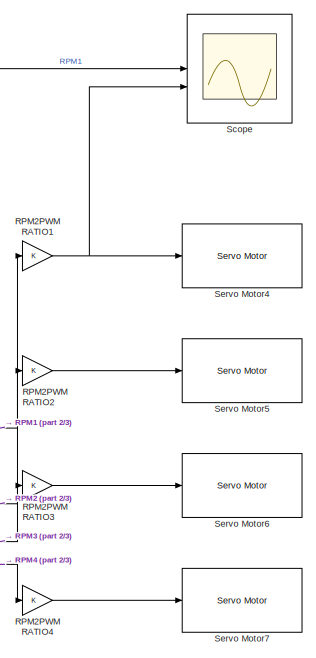
[diagram: root canvas - part 1/3, top right region]
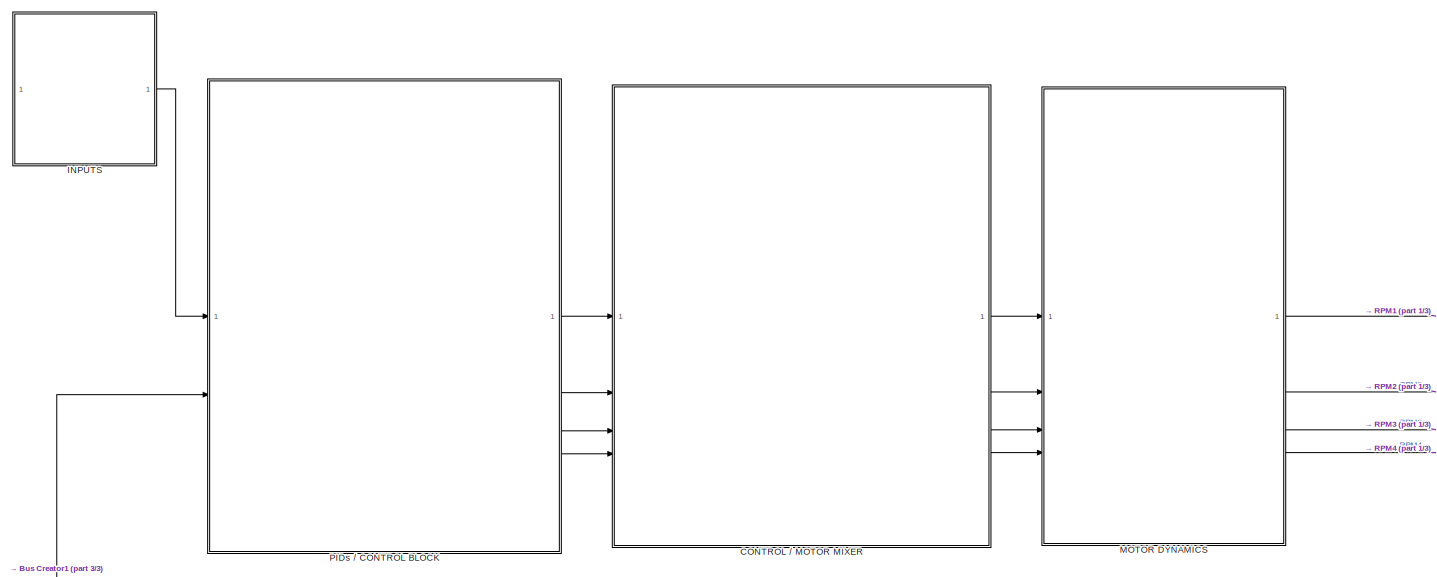
[diagram: root canvas - part 2/3, full width, top band]
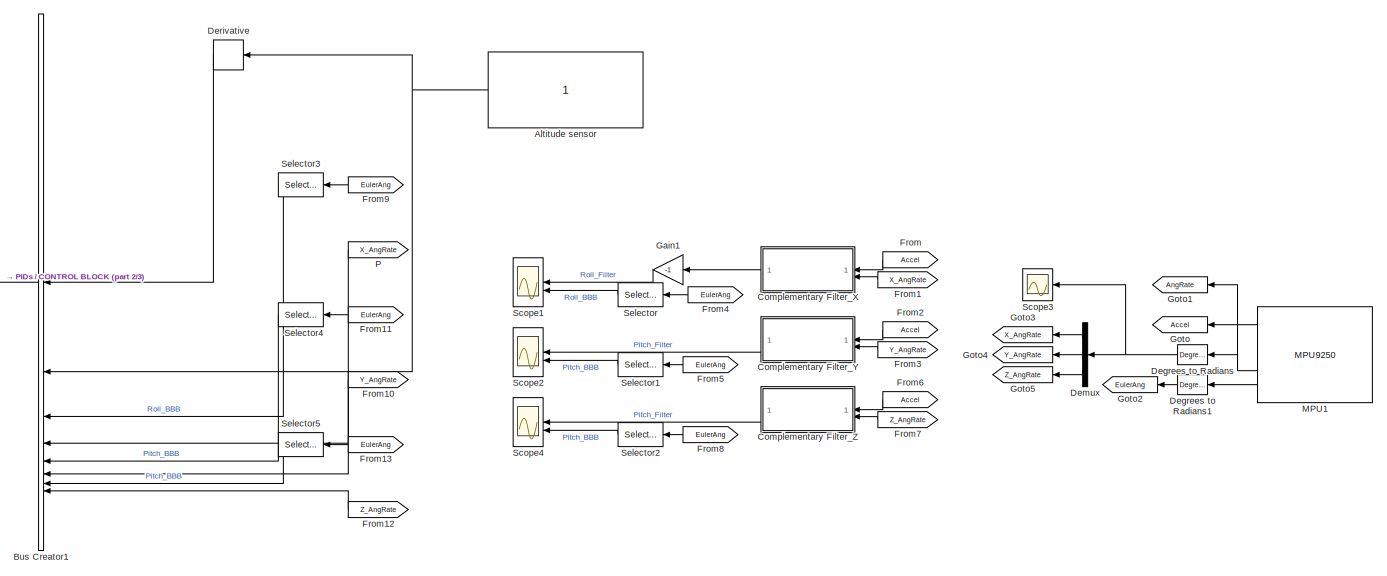
[diagram: root canvas - part 3/3, full width, bottom band]
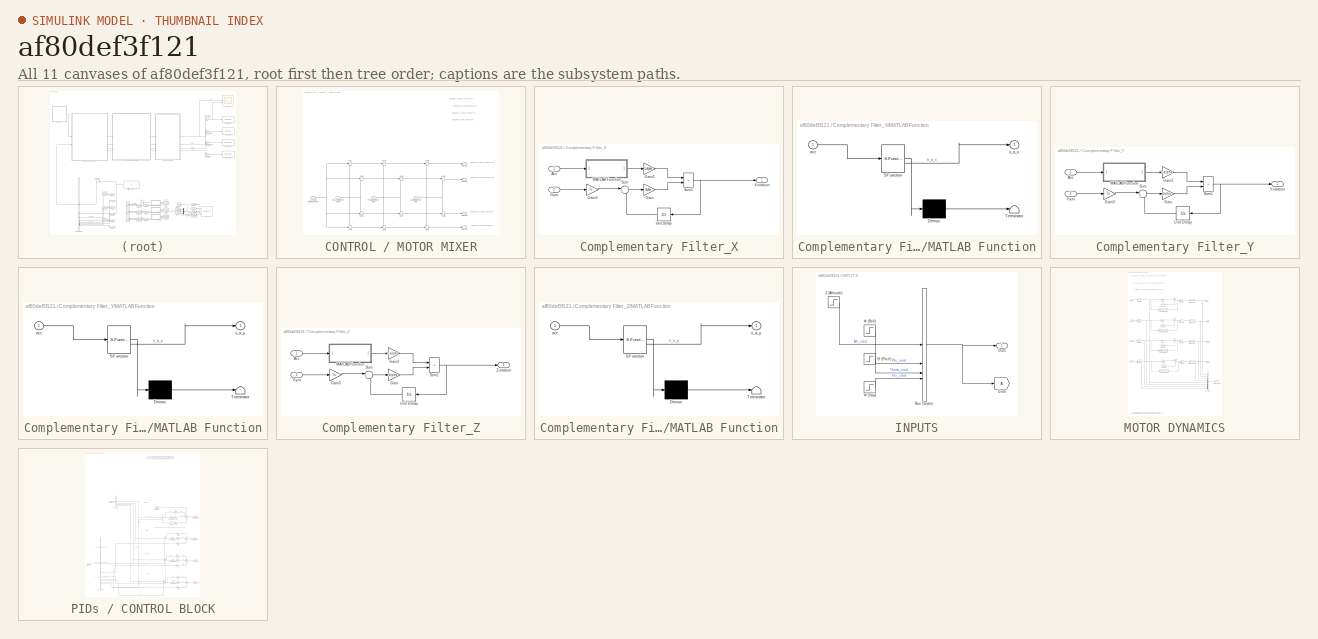
[diagram: thumbnail index - all 11 canvases of the model, root first then tree order]
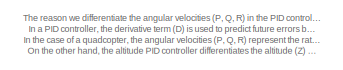
[diagram: PIDs / CONTROL BLOCK - part 1/4, top center region]
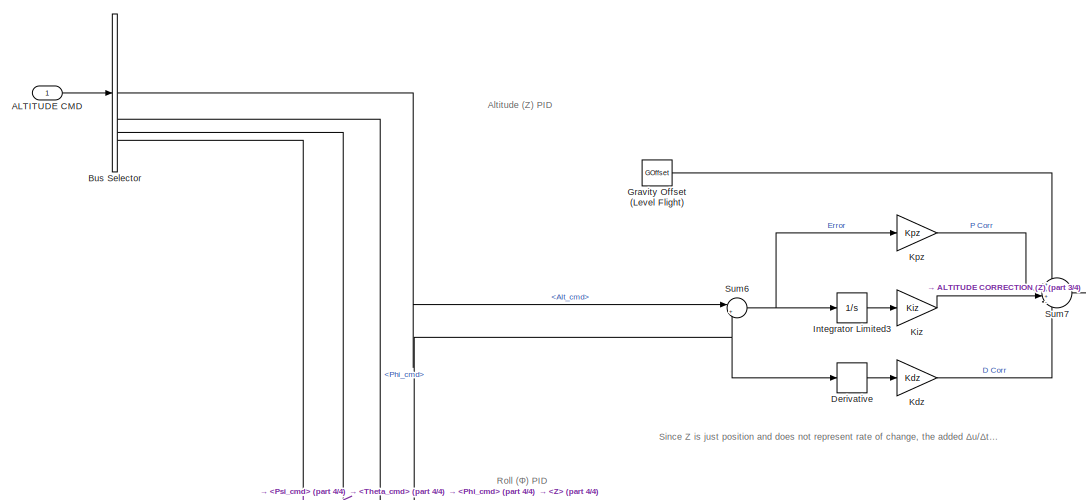
[diagram: PIDs / CONTROL BLOCK - part 2/4, central region]
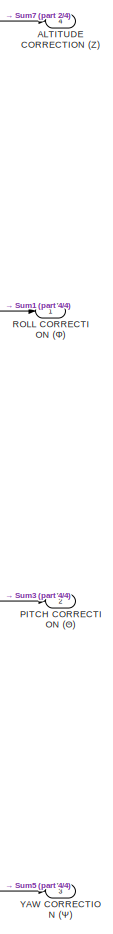
[diagram: PIDs / CONTROL BLOCK - part 3/4, bottom right region]
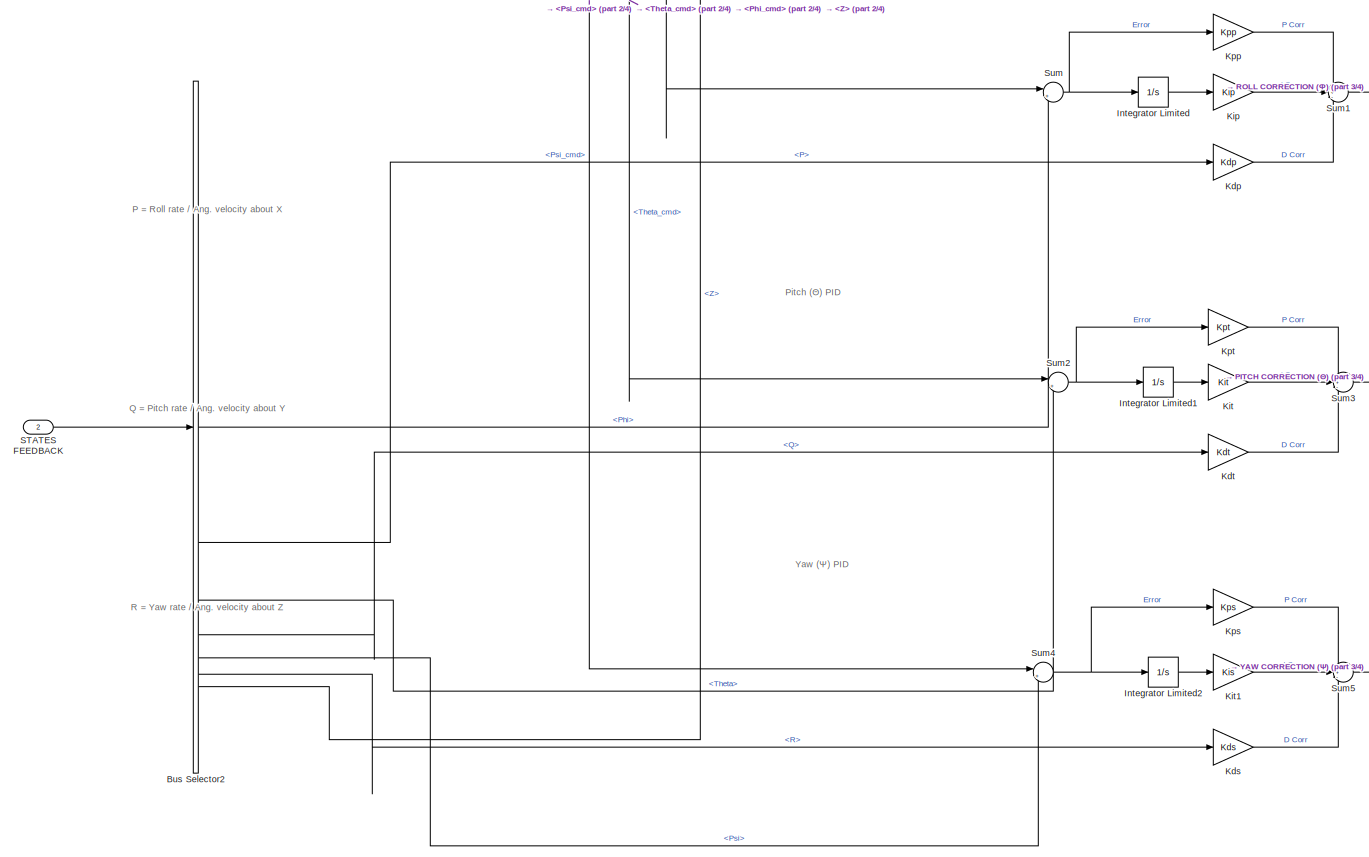
[diagram: PIDs / CONTROL BLOCK - part 4/4, full width, bottom band]
MODEL slx_af80def3f121
KIND model
CONFIG AbsTol = auto
CONFIG EnableMultiTasking = off
CONFIG FixedStep = auto
CONFIG MaxStep = auto
CONFIG MinStep = auto
CONFIG RelTol = 1e-3
CONFIG SampleTimeConstraint = Unconstrained
CONFIG SolverName = VariableStepAuto
CONFIG StartTime = 0.0
CONFIG StopTime = 10.0
BLOCK [Constant] Altitude sensor
BLOCK [BusCreator] Bus Creator1
  DisplayOption = bar
  InheritFromInputs = on
  Inputs = 8
BLOCK [SubSystem] CONTROL // MOTOR MIXER
BLOCK [Inport] CONTROL // MOTOR MIXER/ALTITUDE CORRECTION (Z)
  Port = 4
BLOCK [Outport] CONTROL // MOTOR MIXER/MOTOR1
BLOCK [Outport] CONTROL // MOTOR MIXER/MOTOR2
  Port = 2
BLOCK [Outport] CONTROL // MOTOR MIXER/MOTOR3
  Port = 3
BLOCK [Outport] CONTROL // MOTOR MIXER/MOTOR4
  Port = 4
BLOCK [Inport] CONTROL // MOTOR MIXER/PITCH CORRECTION (θ)
  Port = 2
BLOCK [Inport] CONTROL // MOTOR MIXER/ROLL CORRECTION (Φ)
BLOCK [Sum] CONTROL // MOTOR MIXER/Sum
  Inputs = |+-
BLOCK [Sum] CONTROL // MOTOR MIXER/Sum1
  Inputs = |++
BLOCK [Sum] CONTROL // MOTOR MIXER/Sum10
  Inputs = ++|
BLOCK [Sum] CONTROL // MOTOR MIXER/Sum11
  Inputs = |++
BLOCK [Sum] CONTROL // MOTOR MIXER/Sum2
  Inputs = -+|
BLOCK [Sum] CONTROL // MOTOR MIXER/Sum3
  Inputs = -+|
BLOCK [Sum] CONTROL // MOTOR MIXER/Sum4
  Inputs = |++
BLOCK [Sum] CONTROL // MOTOR MIXER/Sum5
  Inputs = -+|
BLOCK [Sum] CONTROL // MOTOR MIXER/Sum6
  Inputs = |+-
BLOCK [Sum] CONTROL // MOTOR MIXER/Sum7
  Inputs = ++|
BLOCK [Sum] CONTROL // MOTOR MIXER/Sum8
  Inputs = |++
BLOCK [Sum] CONTROL // MOTOR MIXER/Sum9
  Inputs = -+|
BLOCK [Inport] CONTROL // MOTOR MIXER/YAW CORRECTION (ψ)
  Port = 3
BLOCK [SubSystem] Complementary Filter_X
BLOCK [Inport] Complementary Filter_X/Acc
BLOCK [Gain] Complementary Filter_X/Gain
  Gain = alpha
BLOCK [Gain] Complementary Filter_X/Gain2
  Gain = 1-alpha
BLOCK [Gain] Complementary Filter_X/Gain3
  Gain = Ts
BLOCK [Inport] Complementary Filter_X/Gyro
  Port = 2
BLOCK [SubSystem] Complementary Filter_X/MATLAB Function
  ErrorFcn = Stateflow.Translate.translate
  PermitHierarchicalResolution = ExplicitOnly
  SFBlockType = MATLAB Function
  TreatAsAtomicUnit = on
BLOCK [Demux] Complementary Filter_X/MATLAB Function/ Demux 
  Outputs = 1
BLOCK [S-Function] Complementary Filter_X/MATLAB Function/ SFunction 
  EnableBusSupport = on
  FunctionName = sf_sfun
  PortCounts = [1 2]
  SFcnIsStateOwnerBlock = off
  SFunctionDeploymentMode = off
  Tag = Stateflow S-Function 2
BLOCK [Terminator] Complementary Filter_X/MATLAB Function/ Terminator 
BLOCK [Inport] Complementary Filter_X/MATLAB Function/acc
BLOCK [Outport] Complementary Filter_X/MATLAB Function/o_a_x
BLOCK [Sum] Complementary Filter_X/Sum
  Inputs = |++
BLOCK [Sum] Complementary Filter_X/Sum1
  IconShape = rectangular
BLOCK [UnitDelay] Complementary Filter_X/Unit Delay
  HasFrameUpgradeWarning = on
  NameLocation = top
  SampleTime = -1
BLOCK [Outport] Complementary Filter_X/X-rotation
BLOCK [SubSystem] Complementary Filter_Y
BLOCK [Inport] Complementary Filter_Y/Acc
BLOCK [Gain] Complementary Filter_Y/Gain
  Gain = alpha
BLOCK [Gain] Complementary Filter_Y/Gain2
  Gain = 1-alpha
BLOCK [Gain] Complementary Filter_Y/Gain3
  Gain = Ts
BLOCK [Inport] Complementary Filter_Y/Gyro
  Port = 2
BLOCK [SubSystem] Complementary Filter_Y/MATLAB Function
  ErrorFcn = Stateflow.Translate.translate
  PermitHierarchicalResolution = ExplicitOnly
  SFBlockType = MATLAB Function
  TreatAsAtomicUnit = on
BLOCK [Demux] Complementary Filter_Y/MATLAB Function/ Demux 
  Outputs = 1
BLOCK [S-Function] Complementary Filter_Y/MATLAB Function/ SFunction 
  EnableBusSupport = on
  FunctionName = sf_sfun
  PortCounts = [1 2]
  SFcnIsStateOwnerBlock = off
  SFunctionDeploymentMode = off
  Tag = Stateflow S-Function 3
BLOCK [Terminator] Complementary Filter_Y/MATLAB Function/ Terminator 
BLOCK [Inport] Complementary Filter_Y/MATLAB Function/acc
BLOCK [Outport] Complementary Filter_Y/MATLAB Function/o_a_y
BLOCK [Sum] Complementary Filter_Y/Sum
  Inputs = |++
BLOCK [Sum] Complementary Filter_Y/Sum1
  IconShape = rectangular
BLOCK [UnitDelay] Complementary Filter_Y/Unit Delay
  HasFrameUpgradeWarning = on
  NameLocation = top
  SampleTime = -1
BLOCK [Outport] Complementary Filter_Y/Y-rotation
BLOCK [SubSystem] Complementary Filter_Z
BLOCK [Inport] Complementary Filter_Z/Acc
BLOCK [Gain] Complementary Filter_Z/Gain
  Gain = alpha
BLOCK [Gain] Complementary Filter_Z/Gain2
  Gain = 1-alpha
BLOCK [Gain] Complementary Filter_Z/Gain3
  Gain = Ts
BLOCK [Inport] Complementary Filter_Z/Gyro
  Port = 2
BLOCK [SubSystem] Complementary Filter_Z/MATLAB Function
  ErrorFcn = Stateflow.Translate.translate
  PermitHierarchicalResolution = ExplicitOnly
  SFBlockType = MATLAB Function
  TreatAsAtomicUnit = on
BLOCK [Demux] Complementary Filter_Z/MATLAB Function/ Demux 
  Outputs = 1
BLOCK [S-Function] Complementary Filter_Z/MATLAB Function/ SFunction 
  EnableBusSupport = on
  FunctionName = sf_sfun
  PortCounts = [1 2]
  SFcnIsStateOwnerBlock = off
  SFunctionDeploymentMode = off
  Tag = Stateflow S-Function 1
BLOCK [Terminator] Complementary Filter_Z/MATLAB Function/ Terminator 
BLOCK [Inport] Complementary Filter_Z/MATLAB Function/acc
BLOCK [Outport] Complementary Filter_Z/MATLAB Function/o_a_y
BLOCK [Sum] Complementary Filter_Z/Sum
  Inputs = |++
BLOCK [Sum] Complementary Filter_Z/Sum1
  IconShape = rectangular
BLOCK [UnitDelay] Complementary Filter_Z/Unit Delay
  HasFrameUpgradeWarning = on
  NameLocation = top
  SampleTime = -1
BLOCK [Outport] Complementary Filter_Z/Z-rotation
BLOCK [Reference] Degrees to Radians  REF=simulink_extras/Transformations/Degrees to
Radians
  SourceBlock = simulink_extras/Transformations/Degrees to\nRadians
  SourceType = DegreesToRadians
BLOCK [Reference] Degrees to Radians1  REF=simulink_extras/Transformations/Degrees to
Radians
  SourceBlock = simulink_extras/Transformations/Degrees to\nRadians
  SourceType = DegreesToRadians
BLOCK [Demux] Demux
  Outputs = 3
BLOCK [Derivative] Derivative
BLOCK [From] From
  GotoTag = Accel
  TagVisibility = global
BLOCK [From] From1
  GotoTag = X_AngRate
  TagVisibility = global
BLOCK [From] From10
  GotoTag = Y_AngRate
  TagVisibility = global
BLOCK [From] From11
  GotoTag = EulerAng
  TagVisibility = global
BLOCK [From] From12
  GotoTag = Z_AngRate
  TagVisibility = global
BLOCK [From] From13
  GotoTag = EulerAng
  TagVisibility = global
BLOCK [From] From2
  GotoTag = Accel
  TagVisibility = global
BLOCK [From] From3
  GotoTag = Y_AngRate
  TagVisibility = global
BLOCK [From] From4
  GotoTag = EulerAng
  TagVisibility = global
BLOCK [From] From5
  GotoTag = EulerAng
  TagVisibility = global
BLOCK [From] From6
  GotoTag = Accel
  TagVisibility = global
BLOCK [From] From7
  GotoTag = Z_AngRate
  TagVisibility = global
BLOCK [From] From8
  GotoTag = EulerAng
  TagVisibility = global
BLOCK [From] From9
  GotoTag = EulerAng
  TagVisibility = global
BLOCK [Gain] Gain1
  Gain = -1
BLOCK [Goto] Goto
  GotoTag = Accel
  TagVisibility = global
BLOCK [Goto] Goto1
  GotoTag = AngRate
  TagVisibility = global
BLOCK [Goto] Goto2
  GotoTag = EulerAng
  TagVisibility = global
BLOCK [Goto] Goto3
  GotoTag = X_AngRate
  TagVisibility = global
BLOCK [Goto] Goto4
  GotoTag = Y_AngRate
  TagVisibility = global
BLOCK [Goto] Goto5
  GotoTag = Z_AngRate
  TagVisibility = global
BLOCK [SubSystem] INPUTS
BLOCK [BusCreator] INPUTS/Bus Creator
  DisplayOption = bar
  InheritFromInputs = on
  Inputs = 4
BLOCK [Goto] INPUTS/Goto
  TagVisibility = global
BLOCK [Outport] INPUTS/Out1
BLOCK [Step] INPUTS/Z (Altitude)
  SampleTime = 0
BLOCK [Step] INPUTS/Θ (Pitch)
  SampleTime = 0
BLOCK [Step] INPUTS/Φ (Roll)
  SampleTime = 0
BLOCK [Step] INPUTS/Ψ (Yaw)
  SampleTime = 0
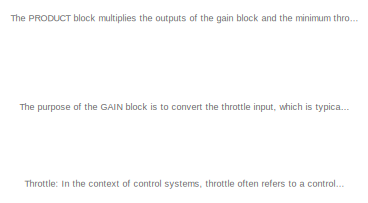
[diagram: MOTOR DYNAMICS - part 1/4, top left region]
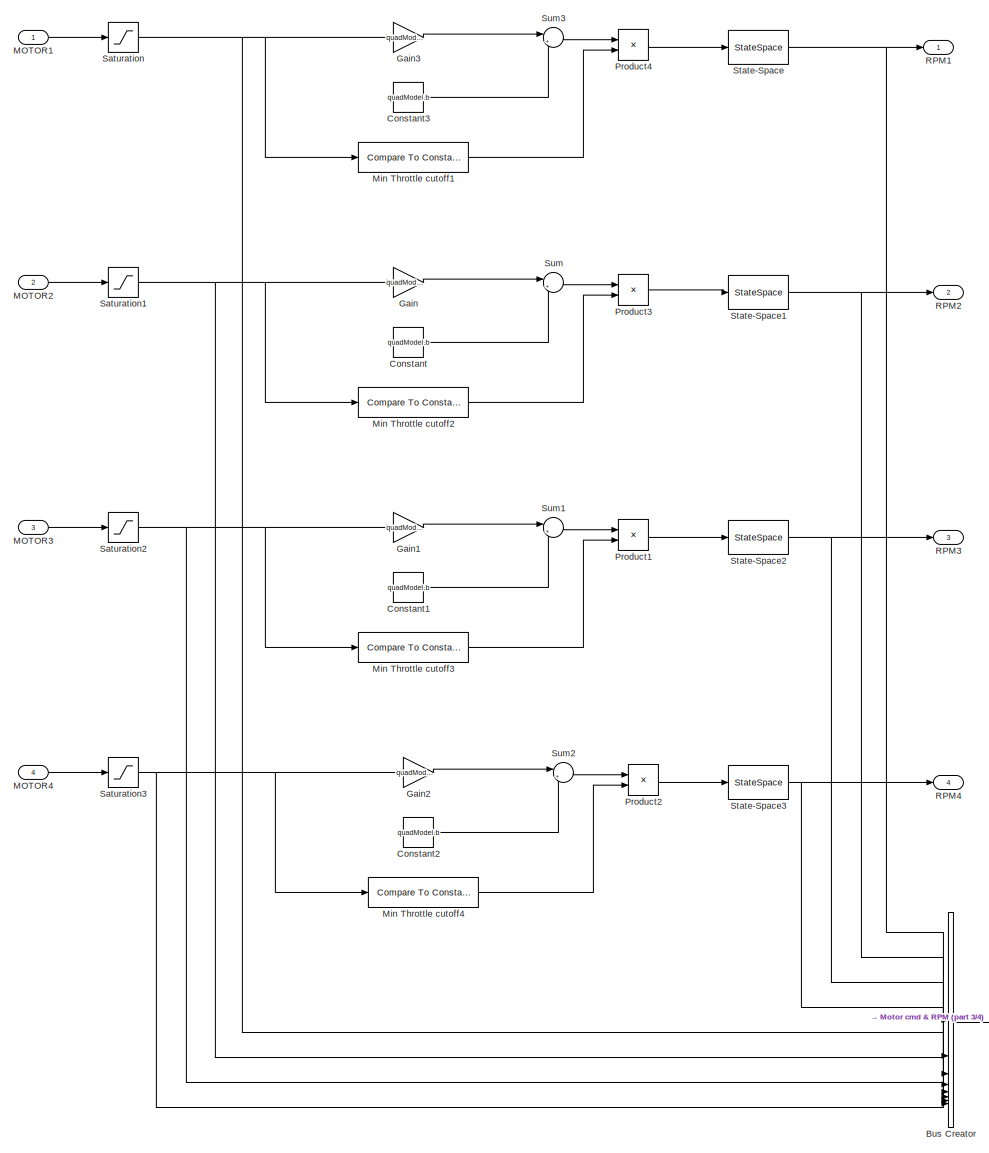
[diagram: MOTOR DYNAMICS - part 2/4, full width, middle band]
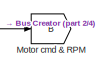
[diagram: MOTOR DYNAMICS - part 3/4, bottom right region]
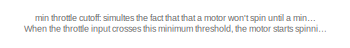
[diagram: MOTOR DYNAMICS - part 4/4, bottom left region]
BLOCK [SubSystem] MOTOR DYNAMICS
BLOCK [BusCreator] MOTOR DYNAMICS/Bus Creator
  DisplayOption = bar
  InheritFromInputs = on
  Inputs = 8
BLOCK [Constant] MOTOR DYNAMICS/Constant
  Value = quadModel.b
BLOCK [Constant] MOTOR DYNAMICS/Constant1
  Value = quadModel.b
BLOCK [Constant] MOTOR DYNAMICS/Constant2
  Value = quadModel.b
BLOCK [Constant] MOTOR DYNAMICS/Constant3
  Value = quadModel.b
BLOCK [Gain] MOTOR DYNAMICS/Gain
  Gain = quadModel.cr
BLOCK [Gain] MOTOR DYNAMICS/Gain1
  Gain = quadModel.cr
BLOCK [Gain] MOTOR DYNAMICS/Gain2
  Gain = quadModel.cr
BLOCK [Gain] MOTOR DYNAMICS/Gain3
  Gain = quadModel.cr
BLOCK [Inport] MOTOR DYNAMICS/MOTOR1
BLOCK [Inport] MOTOR DYNAMICS/MOTOR2
  Port = 2
BLOCK [Inport] MOTOR DYNAMICS/MOTOR3
  Port = 3
BLOCK [Inport] MOTOR DYNAMICS/MOTOR4
  Port = 4
BLOCK [Reference] MOTOR DYNAMICS/Min Throttle cutoff1  REF=simulink/Logic and Bit
Operations/Compare
To Constant
  SourceBlock = simulink/Logic and Bit\nOperations/Compare\nTo Constant
  SourceType = Compare To Constant
BLOCK [Reference] MOTOR DYNAMICS/Min Throttle cutoff2  REF=simulink/Logic and Bit
Operations/Compare
To Constant
  SourceBlock = simulink/Logic and Bit\nOperations/Compare\nTo Constant
  SourceType = Compare To Constant
BLOCK [Reference] MOTOR DYNAMICS/Min Throttle cutoff3  REF=simulink/Logic and Bit
Operations/Compare
To Constant
  SourceBlock = simulink/Logic and Bit\nOperations/Compare\nTo Constant
  SourceType = Compare To Constant
BLOCK [Reference] MOTOR DYNAMICS/Min Throttle cutoff4  REF=simulink/Logic and Bit
Operations/Compare
To Constant
  SourceBlock = simulink/Logic and Bit\nOperations/Compare\nTo Constant
  SourceType = Compare To Constant
BLOCK [Goto] MOTOR DYNAMICS/Motor cmd & RPM
  GotoTag = B
  TagVisibility = global
BLOCK [Product] MOTOR DYNAMICS/Product1
BLOCK [Product] MOTOR DYNAMICS/Product2
BLOCK [Product] MOTOR DYNAMICS/Product3
BLOCK [Product] MOTOR DYNAMICS/Product4
BLOCK [Outport] MOTOR DYNAMICS/RPM1
BLOCK [Outport] MOTOR DYNAMICS/RPM2
  Port = 2
BLOCK [Outport] MOTOR DYNAMICS/RPM3
  Port = 3
BLOCK [Outport] MOTOR DYNAMICS/RPM4
  Port = 4
BLOCK [Saturate] MOTOR DYNAMICS/Saturation
BLOCK [Saturate] MOTOR DYNAMICS/Saturation1
BLOCK [Saturate] MOTOR DYNAMICS/Saturation2
BLOCK [Saturate] MOTOR DYNAMICS/Saturation3
BLOCK [StateSpace] MOTOR DYNAMICS/State-Space
  InitialCondition = 0
BLOCK [StateSpace] MOTOR DYNAMICS/State-Space1
  InitialCondition = 0
BLOCK [StateSpace] MOTOR DYNAMICS/State-Space2
  InitialCondition = 0
BLOCK [StateSpace] MOTOR DYNAMICS/State-Space3
  InitialCondition = 0
BLOCK [Sum] MOTOR DYNAMICS/Sum
  Inputs = |++
  NameLocation = top
BLOCK [Sum] MOTOR DYNAMICS/Sum1
  Inputs = |++
  NameLocation = top
BLOCK [Sum] MOTOR DYNAMICS/Sum2
  Inputs = |++
  NameLocation = top
BLOCK [Sum] MOTOR DYNAMICS/Sum3
  Inputs = |++
  NameLocation = top
BLOCK [Reference] MPU1  REF=bbblueSensorLib/MPU9250
  SourceBlock = bbblueSensorLib/MPU9250
  SourceType = beagleboneblue.bbblueMPU9250
BLOCK [From] P
  GotoTag = X_AngRate
  TagVisibility = global
BLOCK [SubSystem] PIDs // CONTROL BLOCK
BLOCK [Inport] PIDs // CONTROL BLOCK/ALTITUDE CMD
BLOCK [Outport] PIDs // CONTROL BLOCK/ALTITUDE CORRECTION (Ζ)
  Port = 4
BLOCK [BusSelector] PIDs // CONTROL BLOCK/Bus Selector
  OutputSignals = Alt_cmd,Phi_cmd,Theta_cmd,Psi_cmd
BLOCK [BusSelector] PIDs // CONTROL BLOCK/Bus Selector2
  OutputSignals = Phi,P,Theta,Q,Psi,R,Z
BLOCK [Derivative] PIDs // CONTROL BLOCK/Derivative
BLOCK [Constant] PIDs // CONTROL BLOCK/Gravity Offset (Level Flight)
  Value = GOffset
BLOCK [Integrator] PIDs // CONTROL BLOCK/Integrator Limited
  LimitOutput = on
  LowerSaturationLimit = LSat
  UpperSaturationLimit = USat
BLOCK [Integrator] PIDs // CONTROL BLOCK/Integrator Limited1
  LimitOutput = on
  LowerSaturationLimit = LSat
  UpperSaturationLimit = USat
BLOCK [Integrator] PIDs // CONTROL BLOCK/Integrator Limited2
  LimitOutput = on
  LowerSaturationLimit = LSat
  UpperSaturationLimit = USat
BLOCK [Integrator] PIDs // CONTROL BLOCK/Integrator Limited3
  LimitOutput = on
  LowerSaturationLimit = LSat
  UpperSaturationLimit = USat
BLOCK [Gain] PIDs // CONTROL BLOCK/Kdp
  Gain = Kdp
BLOCK [Gain] PIDs // CONTROL BLOCK/Kds
  Gain = Kds
BLOCK [Gain] PIDs // CONTROL BLOCK/Kdt
  Gain = Kdt
BLOCK [Gain] PIDs // CONTROL BLOCK/Kdz
  Gain = Kdz
BLOCK [Gain] PIDs // CONTROL BLOCK/Kip
  Gain = Kip
BLOCK [Gain] PIDs // CONTROL BLOCK/Kit
  Gain = Kit
BLOCK [Gain] PIDs // CONTROL BLOCK/Kit1
  Gain = Kis
BLOCK [Gain] PIDs // CONTROL BLOCK/Kiz
  Gain = Kiz
BLOCK [Gain] PIDs // CONTROL BLOCK/Kpp
  Gain = Kpp
BLOCK [Gain] PIDs // CONTROL BLOCK/Kps
  Gain = Kps
BLOCK [Gain] PIDs // CONTROL BLOCK/Kpt
  Gain = Kpt
BLOCK [Gain] PIDs // CONTROL BLOCK/Kpz
  Gain = Kpz
BLOCK [Outport] PIDs // CONTROL BLOCK/PITCH CORRECTION (Θ)
  Port = 2
BLOCK [Outport] PIDs // CONTROL BLOCK/ROLL CORRECTION (Φ)
BLOCK [Inport] PIDs // CONTROL BLOCK/STATES FEEDBACK
  NameLocation = top
  Port = 2
BLOCK [Sum] PIDs // CONTROL BLOCK/Sum
  Inputs = |+-
BLOCK [Sum] PIDs // CONTROL BLOCK/Sum1
  Inputs = ++-
BLOCK [Sum] PIDs // CONTROL BLOCK/Sum2
  Inputs = |+-
BLOCK [Sum] PIDs // CONTROL BLOCK/Sum3
  Inputs = ++-
BLOCK [Sum] PIDs // CONTROL BLOCK/Sum4
  Inputs = |+-
BLOCK [Sum] PIDs // CONTROL BLOCK/Sum5
  Inputs = ++-
BLOCK [Sum] PIDs // CONTROL BLOCK/Sum6
  Inputs = |+-
BLOCK [Sum] PIDs // CONTROL BLOCK/Sum7
  Inputs = +++-
BLOCK [Outport] PIDs // CONTROL BLOCK/YAW CORRECTION (Ψ)
  Port = 3
BLOCK [Gain] RPM2PWM RATIO1
BLOCK [Gain] RPM2PWM RATIO2
BLOCK [Gain] RPM2PWM RATIO3
BLOCK [Gain] RPM2PWM RATIO4
BLOCK [Scope] Scope
  Floating = off
  NumInputPorts = 2
  ScopeSpecificationString = Simulink.scopes.TimeScopeBlockCfg('CurrentConfiguration', extmgr.ConfigurationSet(extmgr.Configuration('Core','General UI',true),extmgr.Configuration('Core','Source UI',true),extmgr.Configuration('Sources','WiredSimulink',true),extmgr.Configuration('Visuals','Time Domain',true,'SerializedDisplays',{struct('MinYLimReal','-10','MaxYLimReal','10','YLabelReal','','MinYLimMag','0','MaxYLimMag','10','Le...<+1568ch>
BLOCK [Scope] Scope1
  Floating = off
  NumInputPorts = 2
  ScopeSpecificationString = Simulink.scopes.TimeScopeBlockCfg('CurrentConfiguration', extmgr.ConfigurationSet(extmgr.Configuration('Core','General UI',true),extmgr.Configuration('Core','Source UI',true),extmgr.Configuration('Sources','WiredSimulink',true,'DataLoggingVariableName','ScopeData2'),extmgr.Configuration('Visuals','Time Domain',true,'SerializedDisplays',{struct('MinYLimReal','-0.42274','MaxYLimReal','0.28983','YLab...<+1550ch>
BLOCK [Scope] Scope2
  Floating = off
  NumInputPorts = 2
  ScopeSpecificationString = Simulink.scopes.TimeScopeBlockCfg('CurrentConfiguration', extmgr.ConfigurationSet(extmgr.Configuration('Core','General UI',true),extmgr.Configuration('Core','Source UI',true),extmgr.Configuration('Sources','WiredSimulink',true,'DataLoggingVariableName','ScopeData3'),extmgr.Configuration('Visuals','Time Domain',true,'SerializedDisplays',{struct('MinYLimReal','-1.35091','MaxYLimReal','1.63429','YLab...<+1552ch>
BLOCK [Scope] Scope3
  Floating = off
  NumInputPorts = 1
  ScopeSpecificationString = Simulink.scopes.TimeScopeBlockCfg('CurrentConfiguration', extmgr.ConfigurationSet(extmgr.Configuration('Core','General UI',true),extmgr.Configuration('Core','Source UI',true),extmgr.Configuration('Sources','WiredSimulink',true,'DataLoggingVariableName','ScopeData1'),extmgr.Configuration('Visuals','Time Domain',true),extmgr.Configuration('Tools','Plot Navigation',true),extmgr.Configuration('Tools',...<+40ch>
BLOCK [Scope] Scope4
  Floating = off
  NumInputPorts = 2
  ScopeSpecificationString = Simulink.scopes.TimeScopeBlockCfg('CurrentConfiguration', extmgr.ConfigurationSet(extmgr.Configuration('Core','General UI',true),extmgr.Configuration('Core','Source UI',true),extmgr.Configuration('Sources','WiredSimulink',true,'DataLoggingVariableName','ScopeData4'),extmgr.Configuration('Visuals','Time Domain',true,'SerializedDisplays',{struct('MinYLimReal','-1.35091','MaxYLimReal','1.63429','YLab...<+1552ch>
BLOCK [Selector] Selector
  IndexOptions = Index vector (dialog)
  Indices = [2]
  InputPortWidth = 3
  OutputSizes = 1
BLOCK [Selector] Selector1
  IndexOptions = Index vector (dialog)
  Indices = [1]
  InputPortWidth = 3
  OutputSizes = 1
BLOCK [Selector] Selector2
  IndexOptions = Index vector (dialog)
  Indices = [3]
  InputPortWidth = 3
  OutputSizes = 1
BLOCK [Selector] Selector3
  IndexOptions = Index vector (dialog)
  Indices = [2]
  InputPortWidth = 3
  OutputSizes = 1
BLOCK [Selector] Selector4
  IndexOptions = Index vector (dialog)
  Indices = [1]
  InputPortWidth = 3
  OutputSizes = 1
BLOCK [Selector] Selector5
  IndexOptions = Index vector (dialog)
  Indices = [3]
  InputPortWidth = 3
  OutputSizes = 1
BLOCK [Reference] Servo Motor4  REF=bbblueActuatorLib/Servo Motor
  SourceBlock = bbblueActuatorLib/Servo Motor
  SourceType = beagleboneblue.bbblueServo
BLOCK [Reference] Servo Motor5  REF=bbblueActuatorLib/Servo Motor
  SourceBlock = bbblueActuatorLib/Servo Motor
  SourceType = beagleboneblue.bbblueServo
BLOCK [Reference] Servo Motor6  REF=bbblueActuatorLib/Servo Motor
  SourceBlock = bbblueActuatorLib/Servo Motor
  SourceType = beagleboneblue.bbblueServo
BLOCK [Reference] Servo Motor7  REF=bbblueActuatorLib/Servo Motor
  SourceBlock = bbblueActuatorLib/Servo Motor
  SourceType = beagleboneblue.bbblueServo
ANNOTATION CONTROL // MOTOR MIXER: MOTOR1 = ALT. - ROLL + PITCH + YAW
ANNOTATION CONTROL // MOTOR MIXER: MOTOR2 = ALT. + ROLL - PITCH + YAW
ANNOTATION CONTROL // MOTOR MIXER: MOTOR3 = ALT. + ROLL + PITCH - YAW
ANNOTATION CONTROL // MOTOR MIXER: MOTOR4 = ALT. - ROLL - PITCH - YAW
ANNOTATION MOTOR DYNAMICS: The PRODUCT block multiplies the outputs of the gain block and the minimum throttle cutoff block. If the throttle input is greater than or equal to the throttle cutoff (minThr), the output equals the linearly scaled RPM for the given throttle input. Otherwise, the output is zero
ANNOTATION MOTOR DYNAMICS: Throttle : In the context of control systems, throttle often refers to a control input that determines the amount of power or thrust produced by the engine
ANNOTATION MOTOR DYNAMICS: min throttle cutoff: simultes the fact that that a motor won't spin until a minimum throttle point is reached. When the throttle input crosses this minimum threshold, the motor starts spinning, causing a sudden jump (jump discontinuity) in the RPM from zero to some positive value. This is an important aspect of accurately modeling the motor’s behavior. Ignoring this discontinuity could lead to unr...<+151ch>
ANNOTATION MOTOR DYNAMICS: The purpose of the GAIN block is to convert the throttle input, which is typically a dimensionless value ranging from 0 to 1, into an actual RPM value that the motors can understand
ANNOTATION PIDs // CONTROL BLOCK: The reason we differentiate the angular velocities (P, Q, R) in the PID controllers for roll, pitch, and yaw is related to the nature of these control systems. In a PID controller, the derivative term (D) is used to predict future errors based on the current rate of change of the error. This helps to apply corrections before the system can deviate significantly from the setpoint, and it adds a “da...<+854ch>
ANNOTATION PIDs // CONTROL BLOCK: Altitude (Z) PID
ANNOTATION PIDs // CONTROL BLOCK: P = Roll rate / Ang. velocity about X
ANNOTATION PIDs // CONTROL BLOCK: Pitch (Θ) PID
ANNOTATION PIDs // CONTROL BLOCK: Q = Pitch rate / Ang. velocity about Y
ANNOTATION PIDs // CONTROL BLOCK: R = Yaw rate / Ang. velocity about Z
ANNOTATION PIDs // CONTROL BLOCK: Roll (Φ) PID
ANNOTATION PIDs // CONTROL BLOCK: Since Z is just position and does not represent rate of change, the added Δu/Δt is to turn Z into linear velocity, i.e. linear rate of change
ANNOTATION PIDs // CONTROL BLOCK: Yaw (Ψ) PID
NET Altitude sensor:1 -> Bus Creator1:2, Derivative:1
LINE Bus Creator1:1 -> PIDs // CONTROL BLOCK:2
NET CONTROL // MOTOR MIXER/ALTITUDE CORRECTION (Z):1 -> CONTROL // MOTOR MIXER/Sum10:2, CONTROL // MOTOR MIXER/Sum3:2, CONTROL // MOTOR MIXER/Sum8:1, CONTROL // MOTOR MIXER/Sum:1
NET CONTROL // MOTOR MIXER/PITCH CORRECTION (θ):1 -> CONTROL // MOTOR MIXER/Sum1:2, CONTROL // MOTOR MIXER/Sum2:1, CONTROL // MOTOR MIXER/Sum6:2, CONTROL // MOTOR MIXER/Sum7:1
NET CONTROL // MOTOR MIXER/ROLL CORRECTION (Φ):1 -> CONTROL // MOTOR MIXER/Sum10:1, CONTROL // MOTOR MIXER/Sum3:1, CONTROL // MOTOR MIXER/Sum8:2, CONTROL // MOTOR MIXER/Sum:2
LINE CONTROL // MOTOR MIXER/Sum10:1 -> CONTROL // MOTOR MIXER/Sum7:2
LINE CONTROL // MOTOR MIXER/Sum11:1 -> CONTROL // MOTOR MIXER/MOTOR2:1
LINE CONTROL // MOTOR MIXER/Sum1:1 -> CONTROL // MOTOR MIXER/Sum4:1
LINE CONTROL // MOTOR MIXER/Sum2:1 -> CONTROL // MOTOR MIXER/Sum5:2
LINE CONTROL // MOTOR MIXER/Sum3:1 -> CONTROL // MOTOR MIXER/Sum2:2
LINE CONTROL // MOTOR MIXER/Sum4:1 -> CONTROL // MOTOR MIXER/MOTOR1:1
LINE CONTROL // MOTOR MIXER/Sum5:1 -> CONTROL // MOTOR MIXER/MOTOR4:1
LINE CONTROL // MOTOR MIXER/Sum6:1 -> CONTROL // MOTOR MIXER/Sum11:1
LINE CONTROL // MOTOR MIXER/Sum7:1 -> CONTROL // MOTOR MIXER/Sum9:2
LINE CONTROL // MOTOR MIXER/Sum8:1 -> CONTROL // MOTOR MIXER/Sum6:1
LINE CONTROL // MOTOR MIXER/Sum9:1 -> CONTROL // MOTOR MIXER/MOTOR3:1
LINE CONTROL // MOTOR MIXER/Sum:1 -> CONTROL // MOTOR MIXER/Sum1:1
NET CONTROL // MOTOR MIXER/YAW CORRECTION (ψ):1 -> CONTROL // MOTOR MIXER/Sum11:2, CONTROL // MOTOR MIXER/Sum4:2, CONTROL // MOTOR MIXER/Sum5:1, CONTROL // MOTOR MIXER/Sum9:1
LINE CONTROL // MOTOR MIXER:1 -> MOTOR DYNAMICS:1
LINE CONTROL // MOTOR MIXER:2 -> MOTOR DYNAMICS:2
LINE CONTROL // MOTOR MIXER:3 -> MOTOR DYNAMICS:3
LINE CONTROL // MOTOR MIXER:4 -> MOTOR DYNAMICS:4
LINE Complementary Filter_X/Acc:1 -> Complementary Filter_X/MATLAB Function:1
LINE Complementary Filter_X/Gain2:1 -> Complementary Filter_X/Sum1:1
LINE Complementary Filter_X/Gain3:1 -> Complementary Filter_X/Sum:1
LINE Complementary Filter_X/Gain:1 -> Complementary Filter_X/Sum1:2
LINE Complementary Filter_X/Gyro:1 -> Complementary Filter_X/Gain3:1
LINE Complementary Filter_X/MATLAB Function:1 -> Complementary Filter_X/Gain2:1
NET Complementary Filter_X/Sum1:1 -> Complementary Filter_X/Unit Delay:1, Complementary Filter_X/X-rotation:1
LINE Complementary Filter_X/Sum:1 -> Complementary Filter_X/Gain:1
LINE Complementary Filter_X/Unit Delay:1 -> Complementary Filter_X/Sum:2
LINE Complementary Filter_X:1 -> Gain1:1
LINE Complementary Filter_Y/Acc:1 -> Complementary Filter_Y/MATLAB Function:1
LINE Complementary Filter_Y/Gain2:1 -> Complementary Filter_Y/Sum1:1
LINE Complementary Filter_Y/Gain3:1 -> Complementary Filter_Y/Sum:1
LINE Complementary Filter_Y/Gain:1 -> Complementary Filter_Y/Sum1:2
LINE Complementary Filter_Y/Gyro:1 -> Complementary Filter_Y/Gain3:1
LINE Complementary Filter_Y/MATLAB Function:1 -> Complementary Filter_Y/Gain2:1
NET Complementary Filter_Y/Sum1:1 -> Complementary Filter_Y/Unit Delay:1, Complementary Filter_Y/Y-rotation:1
LINE Complementary Filter_Y/Sum:1 -> Complementary Filter_Y/Gain:1
LINE Complementary Filter_Y/Unit Delay:1 -> Complementary Filter_Y/Sum:2
LINE Complementary Filter_Y:1 -> Scope2:1
LINE Complementary Filter_Z/Acc:1 -> Complementary Filter_Z/MATLAB Function:1
LINE Complementary Filter_Z/Gain2:1 -> Complementary Filter_Z/Sum1:1
LINE Complementary Filter_Z/Gain3:1 -> Complementary Filter_Z/Sum:1
LINE Complementary Filter_Z/Gain:1 -> Complementary Filter_Z/Sum1:2
LINE Complementary Filter_Z/Gyro:1 -> Complementary Filter_Z/Gain3:1
LINE Complementary Filter_Z/MATLAB Function:1 -> Complementary Filter_Z/Gain2:1
NET Complementary Filter_Z/Sum1:1 -> Complementary Filter_Z/Unit Delay:1, Complementary Filter_Z/Z-rotation:1
LINE Complementary Filter_Z/Sum:1 -> Complementary Filter_Z/Gain:1
LINE Complementary Filter_Z/Unit Delay:1 -> Complementary Filter_Z/Sum:2
LINE Complementary Filter_Z:1 -> Scope4:1
LINE Degrees to Radians1:1 -> Goto2:1
NET Degrees to Radians:1 -> Demux:1, Scope3:1
LINE Demux:1 -> Goto3:1
LINE Demux:2 -> Goto4:1
LINE Demux:3 -> Goto5:1
LINE Derivative:1 -> Bus Creator1:1
LINE From10:1 -> Bus Creator1:6
LINE From11:1 -> Selector4:1
LINE From12:1 -> Bus Creator1:8
LINE From13:1 -> Selector5:1
LINE From1:1 -> Complementary Filter_X:2
LINE From2:1 -> Complementary Filter_Y:1
LINE From3:1 -> Complementary Filter_Y:2
LINE From4:1 -> Selector:1
LINE From5:1 -> Selector1:1
LINE From6:1 -> Complementary Filter_Z:1
LINE From7:1 -> Complementary Filter_Z:2
LINE From8:1 -> Selector2:1
LINE From9:1 -> Selector3:1
LINE From:1 -> Complementary Filter_X:1
LINE Gain1:1 -> Scope1:1
NET INPUTS/Bus Creator:1 -> INPUTS/Goto:1, INPUTS/Out1:1
LINE INPUTS/Z (Altitude):1 -> INPUTS/Bus Creator:1
LINE INPUTS/Θ (Pitch):1 -> INPUTS/Bus Creator:3
LINE INPUTS/Φ (Roll):1 -> INPUTS/Bus Creator:2
LINE INPUTS/Ψ (Yaw):1 -> INPUTS/Bus Creator:4
LINE INPUTS:1 -> PIDs // CONTROL BLOCK:1
LINE MOTOR DYNAMICS/Bus Creator:1 -> MOTOR DYNAMICS/Motor cmd & RPM:1
LINE MOTOR DYNAMICS/Constant1:1 -> MOTOR DYNAMICS/Sum1:2
LINE MOTOR DYNAMICS/Constant2:1 -> MOTOR DYNAMICS/Sum2:2
LINE MOTOR DYNAMICS/Constant3:1 -> MOTOR DYNAMICS/Sum3:2
LINE MOTOR DYNAMICS/Constant:1 -> MOTOR DYNAMICS/Sum:2
LINE MOTOR DYNAMICS/Gain1:1 -> MOTOR DYNAMICS/Sum1:1
LINE MOTOR DYNAMICS/Gain2:1 -> MOTOR DYNAMICS/Sum2:1
LINE MOTOR DYNAMICS/Gain3:1 -> MOTOR DYNAMICS/Sum3:1
LINE MOTOR DYNAMICS/Gain:1 -> MOTOR DYNAMICS/Sum:1
LINE MOTOR DYNAMICS/MOTOR1:1 -> MOTOR DYNAMICS/Saturation:1
LINE MOTOR DYNAMICS/MOTOR2:1 -> MOTOR DYNAMICS/Saturation1:1
LINE MOTOR DYNAMICS/MOTOR3:1 -> MOTOR DYNAMICS/Saturation2:1
LINE MOTOR DYNAMICS/MOTOR4:1 -> MOTOR DYNAMICS/Saturation3:1
LINE MOTOR DYNAMICS/Min Throttle cutoff1:1 -> MOTOR DYNAMICS/Product4:2
LINE MOTOR DYNAMICS/Min Throttle cutoff2:1 -> MOTOR DYNAMICS/Product3:2
LINE MOTOR DYNAMICS/Min Throttle cutoff3:1 -> MOTOR DYNAMICS/Product1:2
LINE MOTOR DYNAMICS/Min Throttle cutoff4:1 -> MOTOR DYNAMICS/Product2:2
LINE MOTOR DYNAMICS/Product1:1 -> MOTOR DYNAMICS/State-Space2:1
LINE MOTOR DYNAMICS/Product2:1 -> MOTOR DYNAMICS/State-Space3:1
LINE MOTOR DYNAMICS/Product3:1 -> MOTOR DYNAMICS/State-Space1:1
LINE MOTOR DYNAMICS/Product4:1 -> MOTOR DYNAMICS/State-Space:1
NET MOTOR DYNAMICS/Saturation1:1 -> MOTOR DYNAMICS/Bus Creator:6, MOTOR DYNAMICS/Gain:1, MOTOR DYNAMICS/Min Throttle cutoff2:1
NET MOTOR DYNAMICS/Saturation2:1 -> MOTOR DYNAMICS/Bus Creator:7, MOTOR DYNAMICS/Gain1:1, MOTOR DYNAMICS/Min Throttle cutoff3:1
NET MOTOR DYNAMICS/Saturation3:1 -> MOTOR DYNAMICS/Bus Creator:8, MOTOR DYNAMICS/Gain2:1, MOTOR DYNAMICS/Min Throttle cutoff4:1
NET MOTOR DYNAMICS/Saturation:1 -> MOTOR DYNAMICS/Bus Creator:5, MOTOR DYNAMICS/Gain3:1, MOTOR DYNAMICS/Min Throttle cutoff1:1
NET MOTOR DYNAMICS/State-Space1:1 -> MOTOR DYNAMICS/Bus Creator:2, MOTOR DYNAMICS/RPM2:1
NET MOTOR DYNAMICS/State-Space2:1 -> MOTOR DYNAMICS/Bus Creator:3, MOTOR DYNAMICS/RPM3:1
NET MOTOR DYNAMICS/State-Space3:1 -> MOTOR DYNAMICS/Bus Creator:4, MOTOR DYNAMICS/RPM4:1
NET MOTOR DYNAMICS/State-Space:1 -> MOTOR DYNAMICS/Bus Creator:1, MOTOR DYNAMICS/RPM1:1
LINE MOTOR DYNAMICS/Sum1:1 -> MOTOR DYNAMICS/Product1:1
LINE MOTOR DYNAMICS/Sum2:1 -> MOTOR DYNAMICS/Product2:1
LINE MOTOR DYNAMICS/Sum3:1 -> MOTOR DYNAMICS/Product4:1
LINE MOTOR DYNAMICS/Sum:1 -> MOTOR DYNAMICS/Product3:1
NET MOTOR DYNAMICS:1 -> RPM2PWM RATIO1:1, Scope:1
LINE MOTOR DYNAMICS:2 -> RPM2PWM RATIO2:1
LINE MOTOR DYNAMICS:3 -> RPM2PWM RATIO3:1
LINE MOTOR DYNAMICS:4 -> RPM2PWM RATIO4:1
LINE MPU1:1 -> Goto:1
NET MPU1:2 -> Degrees to Radians:1, Goto1:1
LINE MPU1:3 -> Degrees to Radians1:1
LINE P:1 -> Bus Creator1:4
LINE PIDs // CONTROL BLOCK/ALTITUDE CMD:1 -> PIDs // CONTROL BLOCK/Bus Selector:1
LINE PIDs // CONTROL BLOCK/Bus Selector2:1 -> PIDs // CONTROL BLOCK/Sum:2
LINE PIDs // CONTROL BLOCK/Bus Selector2:2 -> PIDs // CONTROL BLOCK/Kdp:1
LINE PIDs // CONTROL BLOCK/Bus Selector2:3 -> PIDs // CONTROL BLOCK/Sum2:2
LINE PIDs // CONTROL BLOCK/Bus Selector2:4 -> PIDs // CONTROL BLOCK/Kdt:1
LINE PIDs // CONTROL BLOCK/Bus Selector2:5 -> PIDs // CONTROL BLOCK/Sum4:2
LINE PIDs // CONTROL BLOCK/Bus Selector2:6 -> PIDs // CONTROL BLOCK/Kds:1
NET PIDs // CONTROL BLOCK/Bus Selector2:7 -> PIDs // CONTROL BLOCK/Derivative:1, PIDs // CONTROL BLOCK/Sum6:2
LINE PIDs // CONTROL BLOCK/Bus Selector:1 -> PIDs // CONTROL BLOCK/Sum6:1
LINE PIDs // CONTROL BLOCK/Bus Selector:2 -> PIDs // CONTROL BLOCK/Sum:1
LINE PIDs // CONTROL BLOCK/Bus Selector:3 -> PIDs // CONTROL BLOCK/Sum2:1
LINE PIDs // CONTROL BLOCK/Bus Selector:4 -> PIDs // CONTROL BLOCK/Sum4:1
LINE PIDs // CONTROL BLOCK/Derivative:1 -> PIDs // CONTROL BLOCK/Kdz:1
LINE PIDs // CONTROL BLOCK/Gravity Offset (Level Flight):1 -> PIDs // CONTROL BLOCK/Sum7:1
LINE PIDs // CONTROL BLOCK/Integrator Limited1:1 -> PIDs // CONTROL BLOCK/Kit:1
LINE PIDs // CONTROL BLOCK/Integrator Limited2:1 -> PIDs // CONTROL BLOCK/Kit1:1
LINE PIDs // CONTROL BLOCK/Integrator Limited3:1 -> PIDs // CONTROL BLOCK/Kiz:1
LINE PIDs // CONTROL BLOCK/Integrator Limited:1 -> PIDs // CONTROL BLOCK/Kip:1
LINE PIDs // CONTROL BLOCK/Kdp:1 -> PIDs // CONTROL BLOCK/Sum1:3
LINE PIDs // CONTROL BLOCK/Kds:1 -> PIDs // CONTROL BLOCK/Sum5:3
LINE PIDs // CONTROL BLOCK/Kdt:1 -> PIDs // CONTROL BLOCK/Sum3:3
LINE PIDs // CONTROL BLOCK/Kdz:1 -> PIDs // CONTROL BLOCK/Sum7:4
LINE PIDs // CONTROL BLOCK/Kip:1 -> PIDs // CONTROL BLOCK/Sum1:2
LINE PIDs // CONTROL BLOCK/Kit1:1 -> PIDs // CONTROL BLOCK/Sum5:2
LINE PIDs // CONTROL BLOCK/Kit:1 -> PIDs // CONTROL BLOCK/Sum3:2
LINE PIDs // CONTROL BLOCK/Kiz:1 -> PIDs // CONTROL BLOCK/Sum7:3
LINE PIDs // CONTROL BLOCK/Kpp:1 -> PIDs // CONTROL BLOCK/Sum1:1
LINE PIDs // CONTROL BLOCK/Kps:1 -> PIDs // CONTROL BLOCK/Sum5:1
LINE PIDs // CONTROL BLOCK/Kpt:1 -> PIDs // CONTROL BLOCK/Sum3:1
LINE PIDs // CONTROL BLOCK/Kpz:1 -> PIDs // CONTROL BLOCK/Sum7:2
LINE PIDs // CONTROL BLOCK/STATES FEEDBACK:1 -> PIDs // CONTROL BLOCK/Bus Selector2:1
LINE PIDs // CONTROL BLOCK/Sum1:1 -> PIDs // CONTROL BLOCK/ROLL CORRECTION (Φ):1
NET PIDs // CONTROL BLOCK/Sum2:1 -> PIDs // CONTROL BLOCK/Integrator Limited1:1, PIDs // CONTROL BLOCK/Kpt:1
LINE PIDs // CONTROL BLOCK/Sum3:1 -> PIDs // CONTROL BLOCK/PITCH CORRECTION (Θ):1
NET PIDs // CONTROL BLOCK/Sum4:1 -> PIDs // CONTROL BLOCK/Integrator Limited2:1, PIDs // CONTROL BLOCK/Kps:1
LINE PIDs // CONTROL BLOCK/Sum5:1 -> PIDs // CONTROL BLOCK/YAW CORRECTION (Ψ):1
NET PIDs // CONTROL BLOCK/Sum6:1 -> PIDs // CONTROL BLOCK/Integrator Limited3:1, PIDs // CONTROL BLOCK/Kpz:1
LINE PIDs // CONTROL BLOCK/Sum7:1 -> PIDs // CONTROL BLOCK/ALTITUDE CORRECTION (Ζ):1
NET PIDs // CONTROL BLOCK/Sum:1 -> PIDs // CONTROL BLOCK/Integrator Limited:1, PIDs // CONTROL BLOCK/Kpp:1
LINE PIDs // CONTROL BLOCK:1 -> CONTROL // MOTOR MIXER:1
LINE PIDs // CONTROL BLOCK:2 -> CONTROL // MOTOR MIXER:2
LINE PIDs // CONTROL BLOCK:3 -> CONTROL // MOTOR MIXER:3
LINE PIDs // CONTROL BLOCK:4 -> CONTROL // MOTOR MIXER:4
NET RPM2PWM RATIO1:1 -> Scope:2, Servo Motor4:1
LINE RPM2PWM RATIO2:1 -> Servo Motor5:1
LINE RPM2PWM RATIO3:1 -> Servo Motor6:1
LINE RPM2PWM RATIO4:1 -> Servo Motor7:1
LINE Selector1:1 -> Scope2:2
LINE Selector2:1 -> Scope4:2
LINE Selector3:1 -> Bus Creator1:3
LINE Selector4:1 -> Bus Creator1:5
LINE Selector5:1 -> Bus Creator1:7
LINE Selector:1 -> Scope1:2
note: NET lines group one-source signal fan-out (src -> all destinations, sorted); 1:1 wires keep LINE
CHART Complementary Filter_Z/MATLAB Function states=1 transitions=1
  STATE_LABEL 'eML_blk_kernel()'
  STATE_LABEL 'SCRIPT:\nfunction o_a_y = fcn(acc)\n\nacc_y = acc(2);\nacc_z = acc(3);\n\no_a_y = atan(acc_y/acc_z);\n\nend'
CHART Complementary Filter_X/MATLAB Function states=1 transitions=1
  STATE_LABEL 'eML_blk_kernel()'
  STATE_LABEL 'SCRIPT:\nfunction o_a_x = fcn(acc)\n\nacc_x = acc(1);\nacc_z = acc(3);\n\no_a_x = atan(acc_x/acc_z);\n\nend'
CHART Complementary Filter_Y/MATLAB Function states=1 transitions=1
  STATE_LABEL 'eML_blk_kernel()'
  STATE_LABEL 'SCRIPT:\nfunction o_a_y = fcn(acc)\n\nacc_y = acc(2);\nacc_z = acc(3);\n\no_a_y = atan(acc_y/acc_z);\n\nend'
CHART  states=0 transitions=0
CHART  states=0 transitions=0
CHART  states=0 transitions=0
